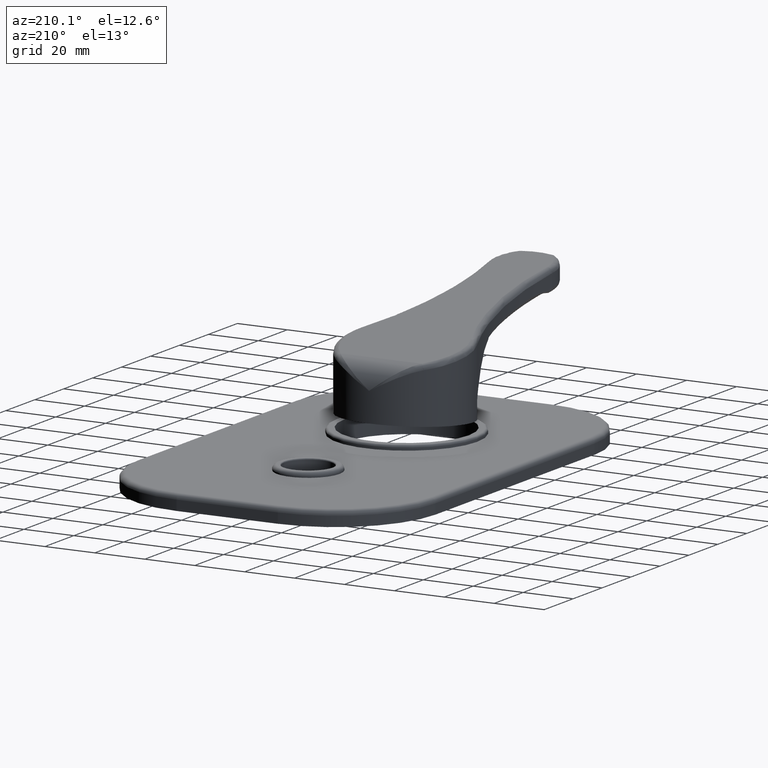
[diagram: clean part render]
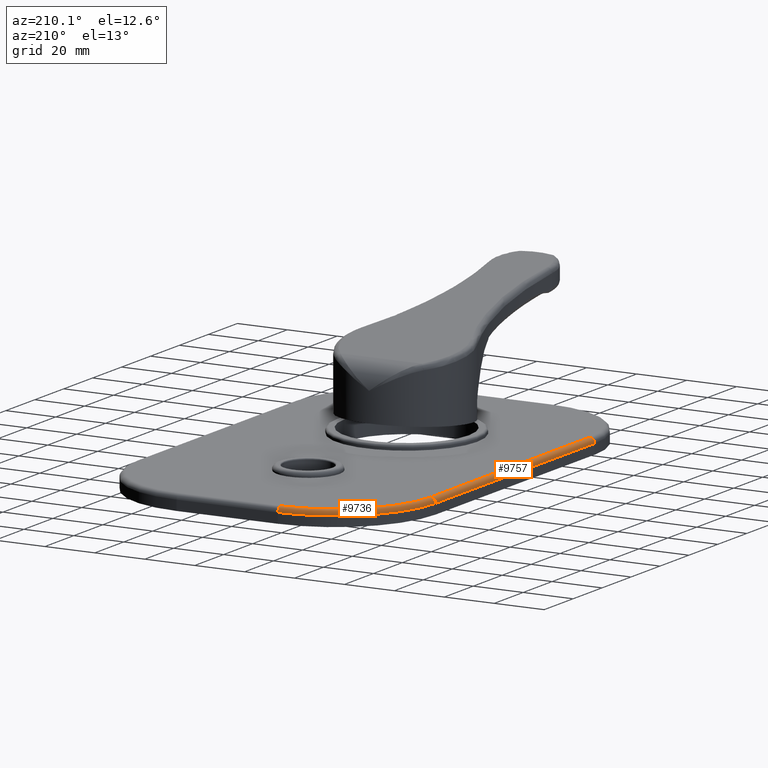
[diagram: same view with one multi-face feature highlighted, each face labeled with its STEP entity id]
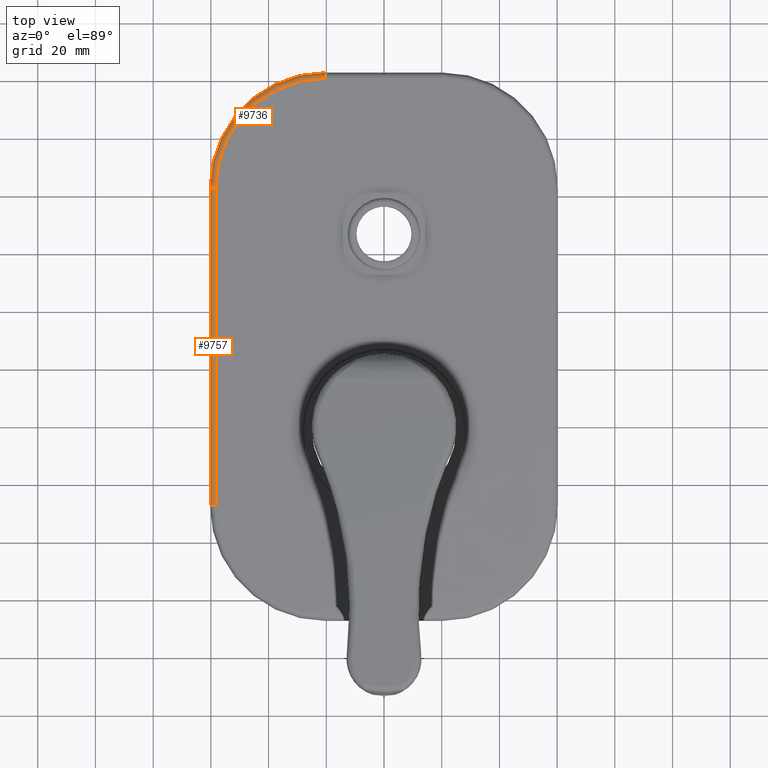
[diagram: same view with one multi-face feature highlighted, each face labeled with its STEP entity id]
A machine part, auxiliary view. The highlighted faces form ONE feature: a constant-radius fillet chain: 2 tangent blend faces with common blend radius 2 mm. The faces share edges in the B-rep.
A second angle (top view) of the same feature is appended — it is thin or edge-on in the first view.
Their STEP definitions:
[1] entity #9736 (Torus):
#8624=CARTESIAN_POINT('',(-2.025E1,8.3E1,-4.E0));
#8625=DIRECTION('',(0.E0,0.E0,1.E0));
#8626=DIRECTION('',(0.E0,1.E0,0.E0));
#8627=AXIS2_PLACEMENT_3D('',#8624,#8625,#8626);
#8692=CARTESIAN_POINT('',(-2.025E1,1.21E2,-6.E0));
#8693=DIRECTION('',(-1.E0,0.E0,0.E0));
#8694=DIRECTION('',(0.E0,0.E0,1.E0));
#8695=AXIS2_PLACEMENT_3D('',#8692,#8693,#8694);
#8697=CARTESIAN_POINT('',(-5.825E1,8.3E1,-6.E0));
#8698=DIRECTION('',(0.E0,-1.E0,0.E0));
#8699=DIRECTION('',(0.E0,0.E0,1.E0));
#8700=AXIS2_PLACEMENT_3D('',#8697,#8698,#8699);
#8758=CARTESIAN_POINT('',(-2.025E1,8.3E1,-6.E0));
#8759=DIRECTION('',(0.E0,0.E0,1.E0));
#8760=DIRECTION('',(0.E0,1.E0,0.E0));
#8761=AXIS2_PLACEMENT_3D('',#8758,#8759,#8760);
#9258=CARTESIAN_POINT('',(-2.025E1,1.21E2,-4.E0));
#9259=VERTEX_POINT('',#9258);
#9260=CARTESIAN_POINT('',(-2.024999999999E1,1.23E2,-6.E0));
#9261=VERTEX_POINT('',#9260);
#9262=CARTESIAN_POINT('',(-5.825E1,8.3E1,-4.E0));
#9263=VERTEX_POINT('',#9262);
#9264=CARTESIAN_POINT('',(-6.025E1,8.3E1,-6.E0));
#9265=VERTEX_POINT('',#9264);
#9723=CARTESIAN_POINT('',(-2.025E1,8.3E1,-6.E0));
#9724=DIRECTION('',(0.E0,0.E0,-1.E0));
#9725=DIRECTION('',(1.229050725942E-2,9.999244688632E-1,0.E0));
#9726=AXIS2_PLACEMENT_3D('',#9723,#9724,#9725);
#9727=TOROIDAL_SURFACE('',#9726,3.8E1,2.E0);
#9728=ORIENTED_EDGE('',*,*,#9586,.T.);
#9730=ORIENTED_EDGE('',*,*,#9729,.T.);
#9732=ORIENTED_EDGE('',*,*,#9731,.F.);
#9733=ORIENTED_EDGE('',*,*,#9708,.F.);
#9734=EDGE_LOOP('',(#9728,#9730,#9732,#9733));
#9735=FACE_OUTER_BOUND('',#9734,.F.);
#9736=ADVANCED_FACE('',(#9735),#9727,.T.);
#8628=CIRCLE('',#8627,3.8E1);
#8696=CIRCLE('',#8695,2.E0);
#8701=CIRCLE('',#8700,2.E0);
#8762=CIRCLE('',#8761,4.E1);
#9586=EDGE_CURVE('',#9259,#9263,#8628,.T.);
#9708=EDGE_CURVE('',#9259,#9261,#8696,.T.);
#9729=EDGE_CURVE('',#9263,#9265,#8701,.T.);
#9731=EDGE_CURVE('',#9261,#9265,#8762,.T.);
[2] entity #9757 (Cylinder):
#8620=DIRECTION('',(0.E0,-1.E0,0.E0));
#8621=VECTOR('',#8620,1.1E2);
#8622=CARTESIAN_POINT('',(-5.825E1,8.3E1,-4.E0));
#8623=LINE('',#8622,#8621);
#8697=CARTESIAN_POINT('',(-5.825E1,8.3E1,-6.E0));
#8698=DIRECTION('',(0.E0,-1.E0,0.E0));
#8699=DIRECTION('',(0.E0,0.E0,1.E0));
#8700=AXIS2_PLACEMENT_3D('',#8697,#8698,#8699);
#8702=CARTESIAN_POINT('',(-5.825E1,-2.7E1,-6.E0));
#8703=DIRECTION('',(0.E0,-1.E0,0.E0));
#8704=DIRECTION('',(0.E0,0.E0,1.E0));
#8705=AXIS2_PLACEMENT_3D('',#8702,#8703,#8704);
#8763=DIRECTION('',(0.E0,-1.E0,0.E0));
#8764=VECTOR('',#8763,1.1E2);
#8765=CARTESIAN_POINT('',(-6.025E1,8.3E1,-6.E0));
#8766=LINE('',#8765,#8764);
#9262=CARTESIAN_POINT('',(-5.825E1,8.3E1,-4.E0));
#9263=VERTEX_POINT('',#9262);
#9264=CARTESIAN_POINT('',(-6.025E1,8.3E1,-6.E0));
#9265=VERTEX_POINT('',#9264);
#9266=CARTESIAN_POINT('',(-5.825E1,-2.7E1,-4.E0));
#9267=VERTEX_POINT('',#9266);
#9268=CARTESIAN_POINT('',(-6.025E1,-2.699999999999E1,-6.E0));
#9269=VERTEX_POINT('',#9268);
#9744=CARTESIAN_POINT('',(-5.825E1,8.334608476688E1,-6.E0));
#9745=DIRECTION('',(0.E0,-1.E0,0.E0));
#9746=DIRECTION('',(0.E0,0.E0,1.E0));
#9747=AXIS2_PLACEMENT_3D('',#9744,#9745,#9746);
#9748=CYLINDRICAL_SURFACE('',#9747,2.E0);
#9749=ORIENTED_EDGE('',*,*,#9584,.T.);
#9751=ORIENTED_EDGE('',*,*,#9750,.T.);
#9753=ORIENTED_EDGE('',*,*,#9752,.F.);
#9754=ORIENTED_EDGE('',*,*,#9729,.F.);
#9755=EDGE_LOOP('',(#9749,#9751,#9753,#9754));
#9756=FACE_OUTER_BOUND('',#9755,.F.);
#9757=ADVANCED_FACE('',(#9756),#9748,.T.);
#8701=CIRCLE('',#8700,2.E0);
#8706=CIRCLE('',#8705,2.E0);
#9584=EDGE_CURVE('',#9263,#9267,#8623,.T.);
#9729=EDGE_CURVE('',#9263,#9265,#8701,.T.);
#9750=EDGE_CURVE('',#9267,#9269,#8706,.T.);
#9752=EDGE_CURVE('',#9265,#9269,#8766,.T.);